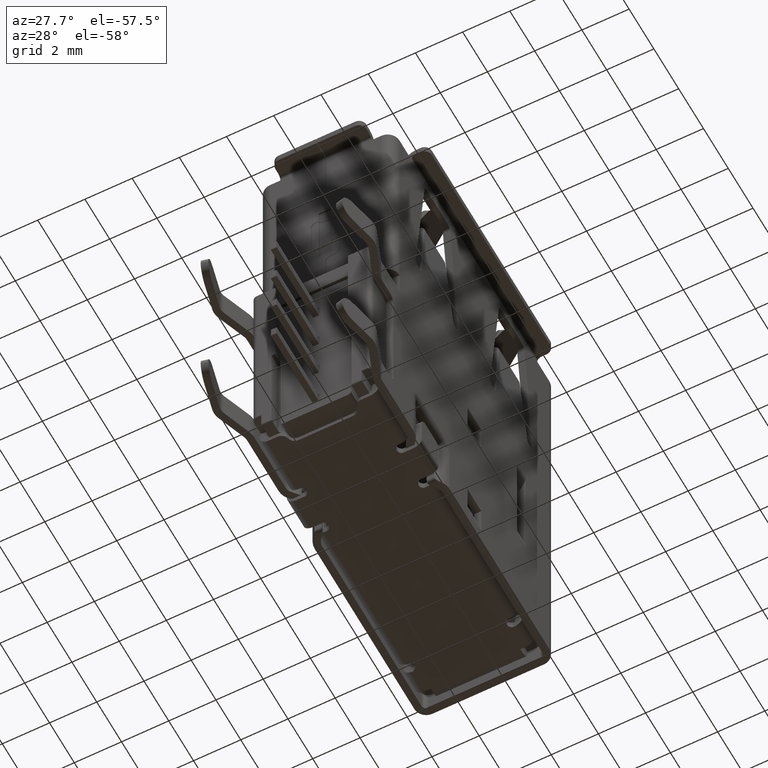
[diagram: clean part render]
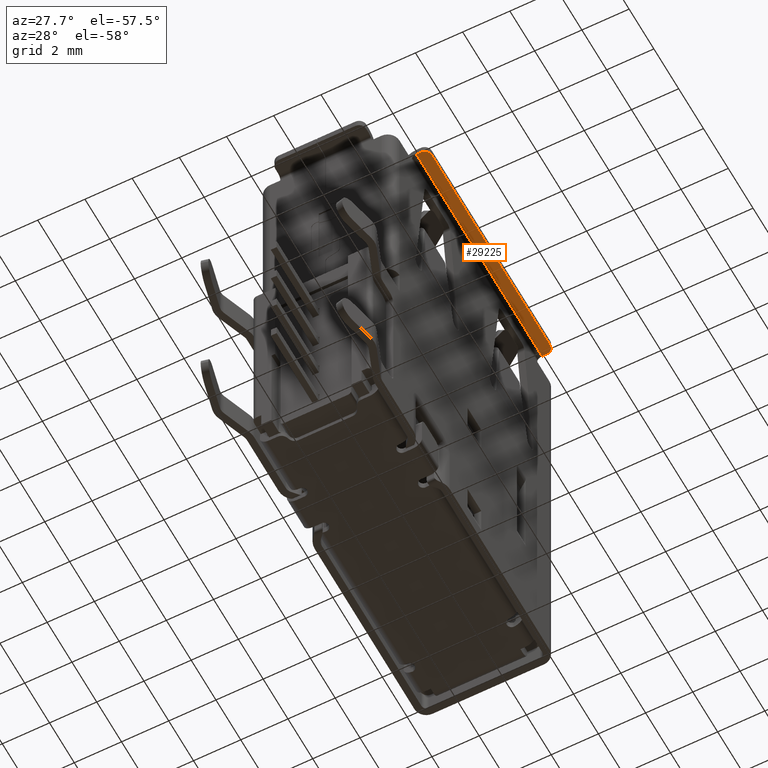
[diagram: same view with one face highlighted and labeled with its STEP entity id]
A machine part, auxiliary view. The second image highlights one B-rep face of the part: STEP entity #29225.
In plain terms, the highlighted planar face has unit normal (-0, 0, -1).
Its self-contained STEP definition (entity closure, byte-faithful):
#520 = CARTESIAN_POINT ( 'NONE',  ( -18.94999999999999929, 5.075000000000000178, 0.4000000000102499897 ) ) ;
#941 = VECTOR ( 'NONE', #4652, 1000.000000000000000 ) ;
#1590 = CARTESIAN_POINT ( 'NONE',  ( -18.94999999999999929, 5.075000000000001066, 0.1999999999500000070 ) ) ;
#3359 = DIRECTION ( 'NONE',  ( 1.000000000000000000, -0.0000000000000000000, 0.0000000000000000000 ) ) ;
#3653 = VERTEX_POINT ( 'NONE', #24518 ) ;
#3970 = CARTESIAN_POINT ( 'NONE',  ( -18.95000000000000284, 5.042668071257987883, 0.5565959972244374221 ) ) ;
#4295 = CARTESIAN_POINT ( 'NONE',  ( -18.95000000002000107, -5.075000000000000178, 0.3999999999795000871 ) ) ;
#4523 = CARTESIAN_POINT ( 'NONE',  ( -18.95000000003999929, -5.075000000005367440, 0.4785398161143284423 ) ) ;
#4652 = DIRECTION ( 'NONE',  ( -0.0000000000000000000, -0.0000000000000000000, 1.000000000000000000 ) ) ;
#5262 = ORIENTED_EDGE ( 'NONE', *, *, #27324, .T. ) ;
#5342 = EDGE_LOOP ( 'NONE', ( #7034, #39268, #5262, #41167, #34497, #41395 ) ) ;
#5420 = CARTESIAN_POINT ( 'NONE',  ( -18.94999999999999929, -5.277999999999999581, 0.1999999998999999751 ) ) ;
#6118 = DIRECTION ( 'NONE',  ( 0.0000000000000000000, 0.0000000000000000000, -1.000000000000000000 ) ) ;
#7034 = ORIENTED_EDGE ( 'NONE', *, *, #42838, .T. ) ;
#7919 = VECTOR ( 'NONE', #34705, 1000.000000000000000 ) ;
#8024 = CARTESIAN_POINT ( 'NONE',  ( -18.94999999999999929, 5.075000000000001066, 0.4500000000000001221 ) ) ;
#8293 = CARTESIAN_POINT ( 'NONE',  ( -18.94999999999999929, -5.074999999833500475, 0.1999999999500000070 ) ) ;
#8724 = VECTOR ( 'NONE', #21932, 1000.000000000000000 ) ;
#11176 = CARTESIAN_POINT ( 'NONE',  ( -18.94999999999999929, 4.775000001249999571, 0.6999999999999999556 ) ) ;
#11962 = VERTEX_POINT ( 'NONE', #32729 ) ;
#15240 = CARTESIAN_POINT ( 'NONE',  ( -18.94999999999999929, 5.075000000000000178, 0.4000000000102499897 ) ) ;
#15788 = CARTESIAN_POINT ( 'NONE',  ( -18.95000000003999929, -5.042668071269639007, 0.5565959972070960715 ) ) ;
#16400 = EDGE_CURVE ( 'NONE', #33279, #11962, #29788, .T. ) ;
#17979 = EDGE_CURVE ( 'NONE', #21596, #18490, #38284, .T. ) ;
#18490 = VERTEX_POINT ( 'NONE', #1590 ) ;
#18933 = CARTESIAN_POINT ( 'NONE',  ( -18.95000000003999929, -4.931595998340668530, 0.6676680706064541670 ) ) ;
#20448 = B_SPLINE_CURVE_WITH_KNOTS ( 'NONE', 3,
 ( #11176, #22195, #36843, #3970, #44744, #15240 ),
 .UNSPECIFIED., .F., .F.,
 ( 4, 2, 4 ),
 ( 0.0000000000000000000, 0.5000000000000000000, 1.000000000000000000 ),
 .UNSPECIFIED. ) ;
#21596 = VERTEX_POINT ( 'NONE', #8293 ) ;
#21932 = DIRECTION ( 'NONE',  ( -0.0000000000000000000, -1.000000000000000000, -0.0000000000000000000 ) ) ;
#22195 = CARTESIAN_POINT ( 'NONE',  ( -18.95000000000000284, 4.853539817379701304, 0.6999999996727512830 ) ) ;
#22275 = CARTESIAN_POINT ( 'NONE',  ( -18.94999999999999929, 0.0000000000000000000, 0.4500000000000001221 ) ) ;
#22980 = CARTESIAN_POINT ( 'NONE',  ( -18.95000000003999574, -4.853539817384828758, 0.6999999996727509499 ) ) ;
#24333 = CARTESIAN_POINT ( 'NONE',  ( -18.94999999999999929, -5.075000000000000178, 0.4500000000000001221 ) ) ;
#24518 = CARTESIAN_POINT ( 'NONE',  ( -18.94999999999999929, 4.775000001249999571, 0.6999999999999999556 ) ) ;
#24812 = LINE ( 'NONE', #36105, #8724 ) ;
#27324 = EDGE_CURVE ( 'NONE', #3653, #11962, #24812, .T. ) ;
#29225 = ADVANCED_FACE ( 'NONE', ( #36695 ), #29737, .T. ) ;
#29737 = PLANE ( 'NONE',  #42514 ) ;
#29788 = B_SPLINE_CURVE_WITH_KNOTS ( 'NONE', 3,
 ( #4295, #4523, #15788, #18933, #22980, #34037 ),
 .UNSPECIFIED., .F., .F.,
 ( 4, 2, 4 ),
 ( 0.0000000000000000000, 0.5000000000000000000, 1.000000000000000000 ),
 .UNSPECIFIED. ) ;
#32249 = CARTESIAN_POINT ( 'NONE',  ( -18.95000000002000107, -5.075000000000000178, 0.3999999999795000871 ) ) ;
#32267 = LINE ( 'NONE', #24333, #44383 ) ;
#32729 = CARTESIAN_POINT ( 'NONE',  ( -18.95000000002000107, -4.775000001249999571, 0.6999999999999999556 ) ) ;
#33279 = VERTEX_POINT ( 'NONE', #32249 ) ;
#34037 = CARTESIAN_POINT ( 'NONE',  ( -18.95000000002000107, -4.775000001249999571, 0.6999999999999999556 ) ) ;
#34497 = ORIENTED_EDGE ( 'NONE', *, *, #35817, .T. ) ;
#34705 = DIRECTION ( 'NONE',  ( 0.0000000000000000000, 1.000000000000000000, 0.0000000000000000000 ) ) ;
#35817 = EDGE_CURVE ( 'NONE', #33279, #21596, #32267, .T. ) ;
#36105 = CARTESIAN_POINT ( 'NONE',  ( -18.94999999999999929, 0.0000000000000000000, 0.6999999999999999556 ) ) ;
#36695 = FACE_OUTER_BOUND ( 'NONE', #5342, .T. ) ;
#36843 = CARTESIAN_POINT ( 'NONE',  ( -18.94999999999999929, 4.931595998330577046, 0.6676680706108557573 ) ) ;
#37753 = LINE ( 'NONE', #8024, #941 ) ;
#38284 = LINE ( 'NONE', #5420, #7919 ) ;
#39268 = ORIENTED_EDGE ( 'NONE', *, *, #47373, .F. ) ;
#40516 = DIRECTION ( 'NONE',  ( 0.0000000000000000000, 0.0000000000000000000, -1.000000000000000000 ) ) ;
#41167 = ORIENTED_EDGE ( 'NONE', *, *, #16400, .F. ) ;
#41395 = ORIENTED_EDGE ( 'NONE', *, *, #17979, .T. ) ;
#41630 = VERTEX_POINT ( 'NONE', #520 ) ;
#42514 = AXIS2_PLACEMENT_3D ( 'NONE', #22275, #3359, #40516 ) ;
#42838 = EDGE_CURVE ( 'NONE', #18490, #41630, #37753, .T. ) ;
#44383 = VECTOR ( 'NONE', #6118, 1000.000000000000000 ) ;
#44744 = CARTESIAN_POINT ( 'NONE',  ( -18.94999999999999929, 5.074999999997316991, 0.4785398161399532779 ) ) ;
#47373 = EDGE_CURVE ( 'NONE', #3653, #41630, #20448, .T. ) ;